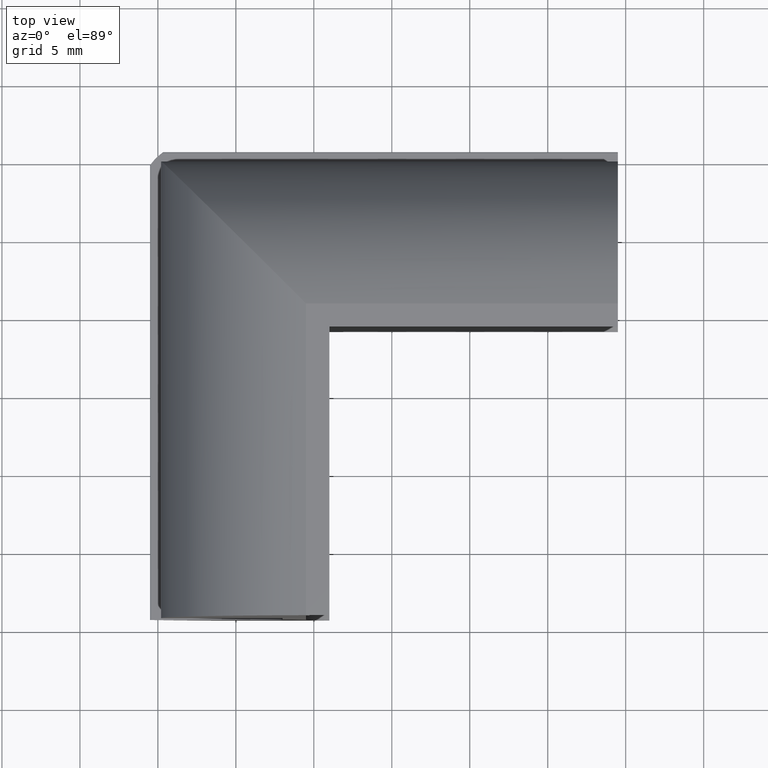
[diagram: clean part render]
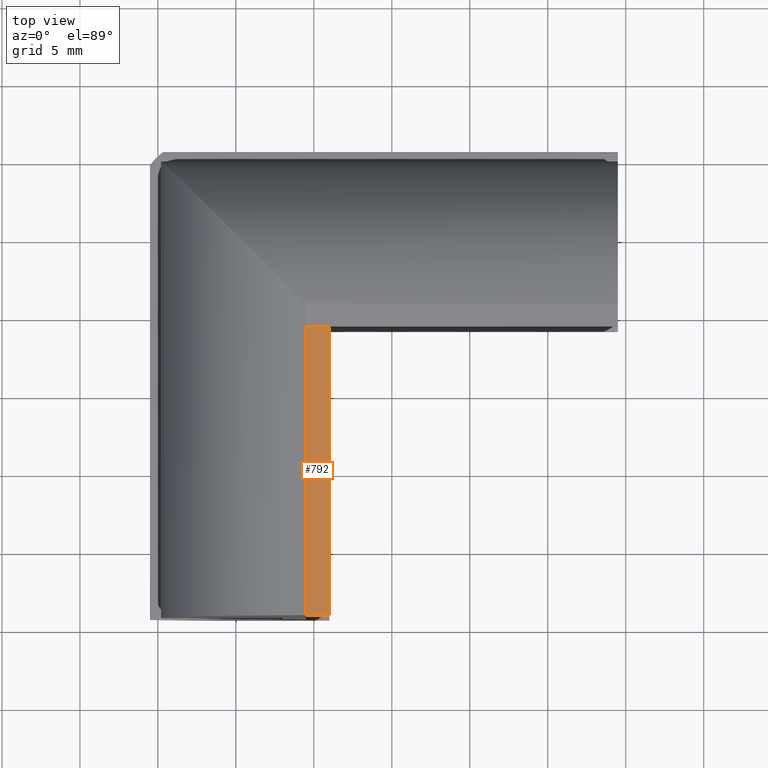
[diagram: same view with one face highlighted and labeled with its STEP entity id]
A machine part, top view. The second image highlights one B-rep face of the part: STEP entity #792.
In plain terms, the highlighted planar face has unit normal (0, 0, 1).
Its self-contained STEP definition (entity closure, byte-faithful):
#41=PLANE('',#887);
#93=FACE_OUTER_BOUND('',#139,.T.);
#139=EDGE_LOOP('',(#633,#634,#635,#636));
#178=LINE('',#1235,#247);
#183=LINE('',#1248,#252);
#193=LINE('',#1285,#262);
#201=LINE('',#1303,#270);
#247=VECTOR('',#993,10.);
#252=VECTOR('',#1010,10.);
#262=VECTOR('',#1042,10.);
#270=VECTOR('',#1064,10.);
#361=VERTEX_POINT('',#1225);
#363=VERTEX_POINT('',#1234);
#365=VERTEX_POINT('',#1247);
#381=VERTEX_POINT('',#1283);
#443=EDGE_CURVE('',#363,#361,#178,.T.);
#451=EDGE_CURVE('',#365,#363,#183,.T.);
#470=EDGE_CURVE('',#381,#361,#193,.T.);
#480=EDGE_CURVE('',#381,#365,#201,.T.);
#633=ORIENTED_EDGE('',*,*,#470,.F.);
#634=ORIENTED_EDGE('',*,*,#480,.T.);
#635=ORIENTED_EDGE('',*,*,#451,.T.);
#636=ORIENTED_EDGE('',*,*,#443,.T.);
#792=ADVANCED_FACE('',(#93),#41,.T.);
#887=AXIS2_PLACEMENT_3D('',#1302,#1062,#1063);
#993=DIRECTION('',(0.,1.,0.));
#1010=DIRECTION('',(1.,0.,0.));
#1042=DIRECTION('',(1.,3.88578058618805E-16,0.));
#1062=DIRECTION('center_axis',(0.,0.,1.));
#1063=DIRECTION('ref_axis',(1.,0.,0.));
#1064=DIRECTION('',(0.,-1.,0.));
#1225=CARTESIAN_POINT('',(6.,9.25,10.));
#1234=CARTESIAN_POINT('',(6.,-9.25,10.));
#1235=CARTESIAN_POINT('',(6.,9.25,10.));
#1247=CARTESIAN_POINT('',(4.50000000000001,-9.25,9.99999999999642));
#1248=CARTESIAN_POINT('',(6.,-9.25,10.));
#1283=CARTESIAN_POINT('',(4.49999999999999,9.24999999999999,10.));
#1285=CARTESIAN_POINT('',(24.5,9.25,10.));
#1302=CARTESIAN_POINT('Origin',(6.69596238608257,8.55403761391743,10.));
#1303=CARTESIAN_POINT('',(4.50000000002304,-9.25,10.));